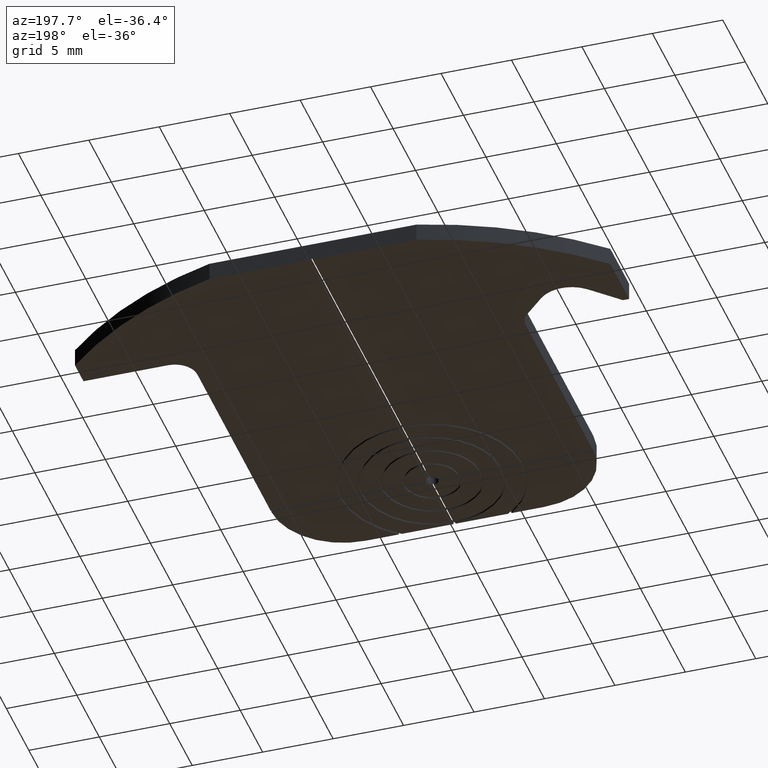
[diagram: clean part render]
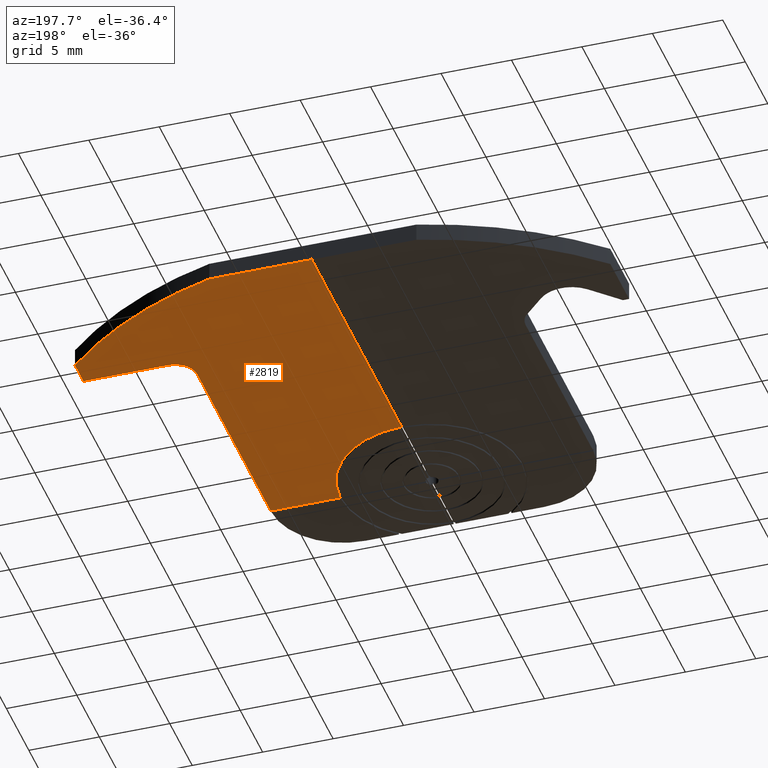
[diagram: same view with one face highlighted and labeled with its STEP entity id]
A machine part, auxiliary view. The second image highlights one B-rep face of the part: STEP entity #2819.
In plain terms, the highlighted planar face has unit normal (0, 0, 1).
Its self-contained STEP definition (entity closure, byte-faithful):
#27 = DIRECTION ( 'NONE',  ( 0.000000000000000000, 0.000000000000000000, -1.000000000000000000 ) ) ;
#28 = DIRECTION ( 'NONE',  ( 0.000000000000000000, 0.000000000000000000, 1.000000000000000000 ) ) ;
#86 = CARTESIAN_POINT ( 'NONE',  ( 0.08339658199999999688, 6.499451977688558202, 0.000000000000000000 ) ) ;
#108 = EDGE_CURVE ( 'NONE', #4101, #4864, #4041, .T. ) ;
#403 = DIRECTION ( 'NONE',  ( -0.000000000000000000, -0.000000000000000000, -1.000000000000000000 ) ) ;
#491 = LINE ( 'NONE', #4370, #4718 ) ;
#520 = EDGE_CURVE ( 'NONE', #1252, #823, #3414, .T. ) ;
#550 = DIRECTION ( 'NONE',  ( 1.000000000000000000, 1.236989740706367115E-16, -0.000000000000000000 ) ) ;
#812 = ORIENTED_EDGE ( 'NONE', *, *, #3221, .F. ) ;
#823 = VERTEX_POINT ( 'NONE', #86 ) ;
#902 = EDGE_CURVE ( 'NONE', #1252, #4864, #491, .T. ) ;
#915 = CIRCLE ( 'NONE', #4268, 6.499987000000000847 ) ;
#953 = EDGE_CURVE ( 'NONE', #4931, #4305, #3325, .T. ) ;
#999 = CARTESIAN_POINT ( 'NONE',  ( 11.42999999999999972, 16.40839999999998966, 0.000000000000000000 ) ) ;
#1041 = LINE ( 'NONE', #2426, #1687 ) ;
#1042 = DIRECTION ( 'NONE',  ( 0.000000000000000000, 1.000000000000000000, 0.000000000000000000 ) ) ;
#1089 = PLANE ( 'NONE',  #3106 ) ;
#1099 = ORIENTED_EDGE ( 'NONE', *, *, #520, .F. ) ;
#1252 = VERTEX_POINT ( 'NONE', #4599 ) ;
#1301 = VERTEX_POINT ( 'NONE', #1535 ) ;
#1485 = VECTOR ( 'NONE', #2519, 1000.000000000000000 ) ;
#1488 = DIRECTION ( 'NONE',  ( 1.000000000000000000, 0.000000000000000000, -0.000000000000000000 ) ) ;
#1502 = CARTESIAN_POINT ( 'NONE',  ( 19.00000000000000000, 17.98319999999999652, 0.000000000000000000 ) ) ;
#1535 = CARTESIAN_POINT ( 'NONE',  ( 6.499775423724685197, 0.05244464999999967625, 0.000000000000000000 ) ) ;
#1687 = VECTOR ( 'NONE', #2808, 1000.000000000000000 ) ;
#1742 = CARTESIAN_POINT ( 'NONE',  ( 11.42999999999999972, -0.05080000000001218263, 0.000000000000000000 ) ) ;
#1952 = VECTOR ( 'NONE', #1042, 1000.000000000000000 ) ;
#1993 = FACE_OUTER_BOUND ( 'NONE', #3065, .T. ) ;
#2042 = AXIS2_PLACEMENT_3D ( 'NONE', #2151, #4765, #4829 ) ;
#2151 = CARTESIAN_POINT ( 'NONE',  ( 0.000000000000000000, 0.000000000000000000, 0.000000000000000000 ) ) ;
#2199 = CARTESIAN_POINT ( 'NONE',  ( 13.00480000000000480, 16.40839999999998966, 0.000000000000000000 ) ) ;
#2304 = CARTESIAN_POINT ( 'NONE',  ( -15.23999999999999666, 19.07355610690431647, 0.000000000000000000 ) ) ;
#2367 = ORIENTED_EDGE ( 'NONE', *, *, #953, .F. ) ;
#2426 = CARTESIAN_POINT ( 'NONE',  ( 13.00480000000000480, 17.98319999999999652, 0.000000000000000000 ) ) ;
#2427 = DIRECTION ( 'NONE',  ( 1.000000000000000000, 0.000000000000000000, 0.000000000000000000 ) ) ;
#2461 = CARTESIAN_POINT ( 'NONE',  ( 11.42999999999999972, 0.05244465000000140403, 0.000000000000000000 ) ) ;
#2512 = DIRECTION ( 'NONE',  ( -0.000000000000000000, -1.000000000000000000, -0.000000000000000000 ) ) ;
#2519 = DIRECTION ( 'NONE',  ( 0.000000000000000000, 1.000000000000000000, -0.000000000000000000 ) ) ;
#2603 = EDGE_CURVE ( 'NONE', #823, #1301, #915, .T. ) ;
#2687 = VECTOR ( 'NONE', #2512, 1000.000000000000000 ) ;
#2808 = DIRECTION ( 'NONE',  ( 1.000000000000000000, 0.000000000000000000, 0.000000000000000000 ) ) ;
#2819 = ADVANCED_FACE ( 'NONE', ( #1993 ), #1089, .F. ) ;
#2879 = ORIENTED_EDGE ( 'NONE', *, *, #3535, .F. ) ;
#2945 = CIRCLE ( 'NONE', #3771, 1.574800000000006417 ) ;
#3013 = ORIENTED_EDGE ( 'NONE', *, *, #108, .F. ) ;
#3018 = DIRECTION ( 'NONE',  ( -1.000000000000000000, 0.000000000000000000, 0.000000000000000000 ) ) ;
#3065 = EDGE_LOOP ( 'NONE', ( #1099, #4066, #3013, #812, #4309, #3520, #2367, #2879, #3835 ) ) ;
#3106 = AXIS2_PLACEMENT_3D ( 'NONE', #2304, #28, #1488 ) ;
#3221 = EDGE_CURVE ( 'NONE', #4165, #4101, #4413, .T. ) ;
#3325 = LINE ( 'NONE', #1742, #1952 ) ;
#3414 = LINE ( 'NONE', #4050, #2687 ) ;
#3520 = ORIENTED_EDGE ( 'NONE', *, *, #4790, .F. ) ;
#3535 = EDGE_CURVE ( 'NONE', #1301, #4931, #4145, .T. ) ;
#3588 = CARTESIAN_POINT ( 'NONE',  ( 0.000000000000000000, 0.000000000000000000, 0.000000000000000000 ) ) ;
#3662 = CARTESIAN_POINT ( 'NONE',  ( 18.99999999999999645, 19.88089535207104674, 0.000000000000000000 ) ) ;
#3754 = CARTESIAN_POINT ( 'NONE',  ( 18.99999999999999645, 19.07355610690431647, 0.000000000000000000 ) ) ;
#3771 = AXIS2_PLACEMENT_3D ( 'NONE', #2199, #403, #3809 ) ;
#3809 = DIRECTION ( 'NONE',  ( 1.000000000000000000, 0.000000000000000000, 0.000000000000000000 ) ) ;
#3835 = ORIENTED_EDGE ( 'NONE', *, *, #2603, .F. ) ;
#4041 = CIRCLE ( 'NONE', #2042, 27.50000000000000000 ) ;
#4042 = VERTEX_POINT ( 'NONE', #4157 ) ;
#4050 = CARTESIAN_POINT ( 'NONE',  ( 0.08339658199999999688, 6.499451977688558202, 0.000000000000000000 ) ) ;
#4066 = ORIENTED_EDGE ( 'NONE', *, *, #902, .T. ) ;
#4101 = VERTEX_POINT ( 'NONE', #3662 ) ;
#4145 = LINE ( 'NONE', #2461, #4210 ) ;
#4157 = CARTESIAN_POINT ( 'NONE',  ( 13.00480000000000480, 17.98319999999999652, 0.000000000000000000 ) ) ;
#4165 = VERTEX_POINT ( 'NONE', #1502 ) ;
#4210 = VECTOR ( 'NONE', #550, 1000.000000000000000 ) ;
#4221 = CARTESIAN_POINT ( 'NONE',  ( 7.348469228349537197, 26.50000000000000000, 0.000000000000000000 ) ) ;
#4268 = AXIS2_PLACEMENT_3D ( 'NONE', #3588, #27, #3018 ) ;
#4305 = VERTEX_POINT ( 'NONE', #999 ) ;
#4309 = ORIENTED_EDGE ( 'NONE', *, *, #4521, .F. ) ;
#4370 = CARTESIAN_POINT ( 'NONE',  ( -7.348469228349537197, 26.50000000000000000, 0.000000000000000000 ) ) ;
#4413 = LINE ( 'NONE', #3754, #1485 ) ;
#4521 = EDGE_CURVE ( 'NONE', #4042, #4165, #1041, .T. ) ;
#4596 = CARTESIAN_POINT ( 'NONE',  ( 11.42999999999999972, 0.05244465000000140403, 0.000000000000000000 ) ) ;
#4599 = CARTESIAN_POINT ( 'NONE',  ( 0.08339658199999999688, 26.50000000000000000, 0.000000000000000000 ) ) ;
#4718 = VECTOR ( 'NONE', #2427, 1000.000000000000000 ) ;
#4765 = DIRECTION ( 'NONE',  ( 0.000000000000000000, 0.000000000000000000, 1.000000000000000000 ) ) ;
#4790 = EDGE_CURVE ( 'NONE', #4305, #4042, #2945, .T. ) ;
#4829 = DIRECTION ( 'NONE',  ( 1.000000000000000000, 0.000000000000000000, 0.000000000000000000 ) ) ;
#4864 = VERTEX_POINT ( 'NONE', #4221 ) ;
#4931 = VERTEX_POINT ( 'NONE', #4596 ) ;